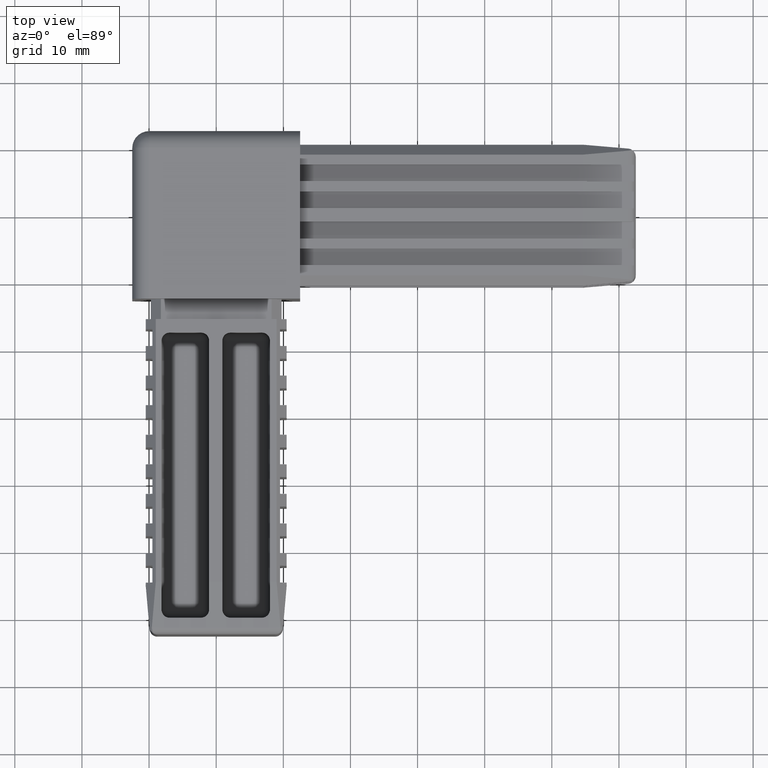
[diagram: clean part render]
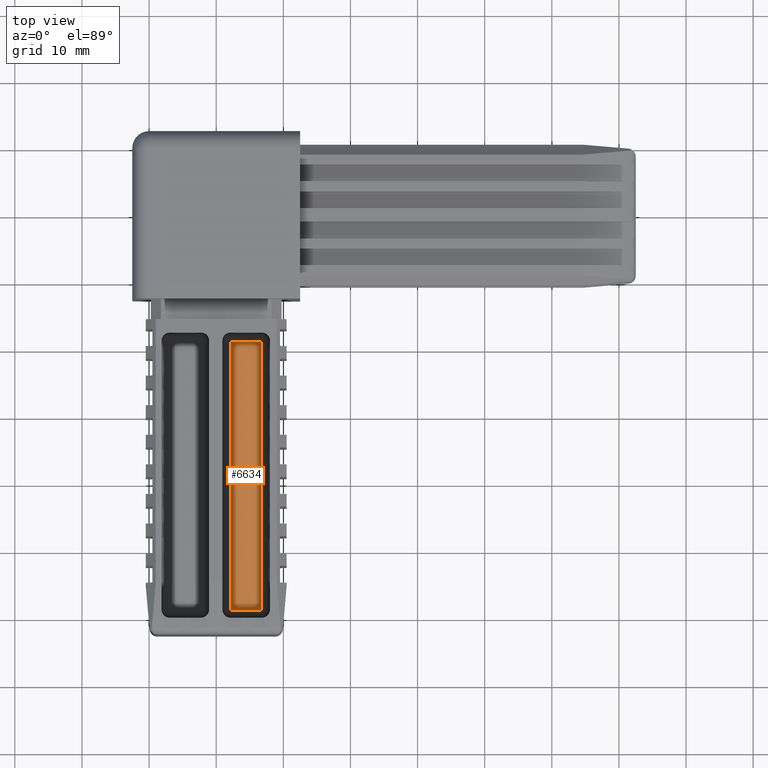
[diagram: same view with one face highlighted and labeled with its STEP entity id]
A machine part, top view. The second image highlights one B-rep face of the part: STEP entity #6634.
In plain terms, the highlighted planar face has unit normal (0, 0, -1).
Its self-contained STEP definition (entity closure, byte-faithful):
#186=LINE('',#9685,#994);
#191=LINE('',#9705,#999);
#193=LINE('',#9708,#1001);
#195=LINE('',#9711,#1003);
#994=VECTOR('',#7727,4.676);
#999=VECTOR('',#7748,40.1);
#1001=VECTOR('',#7752,4.676);
#1003=VECTOR('',#7756,40.1);
#1769=PLANE('',#7058);
#2079=FACE_OUTER_BOUND('',#2450,.T.);
#2450=EDGE_LOOP('',(#4771,#4772,#4773,#4774));
#3003=VERTEX_POINT('',#9634);
#3010=VERTEX_POINT('',#9651);
#3017=VERTEX_POINT('',#9668);
#3024=VERTEX_POINT('',#9688);
#3692=EDGE_CURVE('',#3003,#3017,#186,.T.);
#3702=EDGE_CURVE('',#3017,#3024,#191,.T.);
#3704=EDGE_CURVE('',#3024,#3010,#193,.T.);
#3706=EDGE_CURVE('',#3010,#3003,#195,.T.);
#4771=ORIENTED_EDGE('',*,*,#3692,.F.);
#4772=ORIENTED_EDGE('',*,*,#3706,.F.);
#4773=ORIENTED_EDGE('',*,*,#3704,.F.);
#4774=ORIENTED_EDGE('',*,*,#3702,.F.);
#6634=ADVANCED_FACE('',(#2079),#1769,.F.);
#7058=AXIS2_PLACEMENT_3D('',#9726,#7768,#7769);
#7727=DIRECTION('',(1.,0.,0.));
#7748=DIRECTION('',(4.17966315153E-16,-1.,0.));
#7752=DIRECTION('',(-1.,0.,0.));
#7756=DIRECTION('',(-3.1347473636475E-16,1.,0.));
#7768=DIRECTION('center_axis',(0.,0.,-1.));
#7769=DIRECTION('ref_axis',(-1.,0.,0.));
#9634=CARTESIAN_POINT('',(2.124,-18.7,2.));
#9651=CARTESIAN_POINT('',(2.12400000000001,-58.8,2.));
#9668=CARTESIAN_POINT('',(6.8,-18.7,2.));
#9685=CARTESIAN_POINT('',(2.693,-18.7,2.));
#9688=CARTESIAN_POINT('',(6.80000000000001,-58.8,2.));
#9705=CARTESIAN_POINT('',(6.8,-28.125,2.));
#9708=CARTESIAN_POINT('',(6.23100000000001,-58.8,2.));
#9711=CARTESIAN_POINT('',(2.12400000000001,-49.375,2.));
#9726=CARTESIAN_POINT('Origin',(4.462,-38.75,2.));